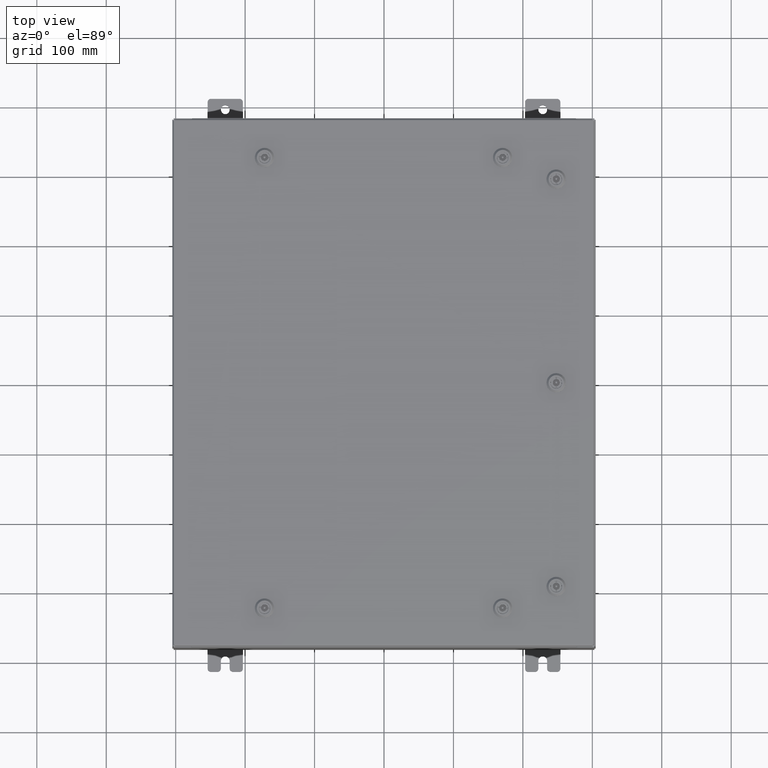
[diagram: clean part render]
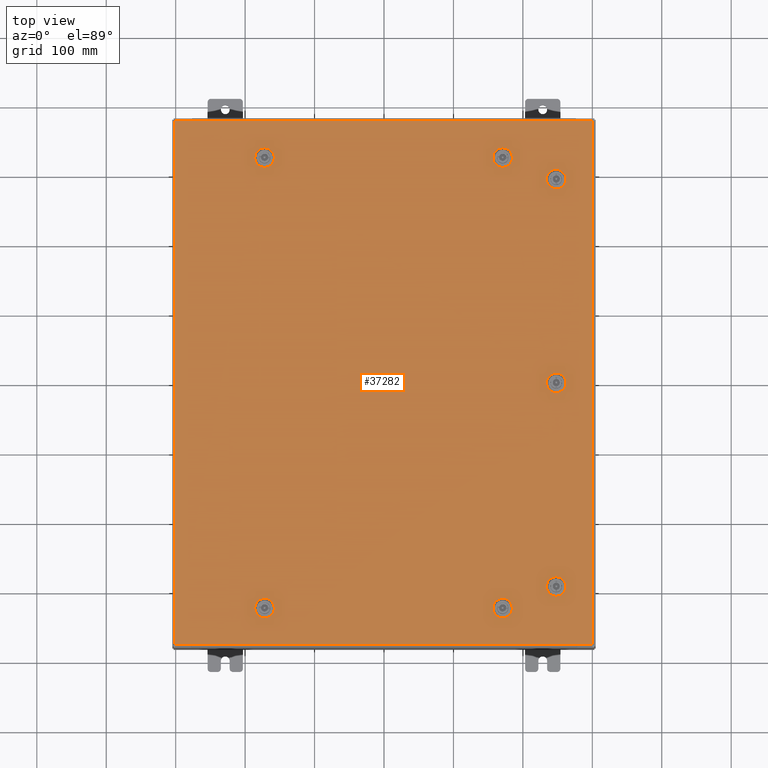
[diagram: same view with one face highlighted and labeled with its STEP entity id]
A machine part, top view. The second image highlights one B-rep face of the part: STEP entity #37282.
In plain terms, the highlighted planar face has unit normal (0, 0, -1).
Its self-contained STEP definition (entity closure, byte-faithful):
#252 = ORIENTED_EDGE ( 'NONE', *, *, #18553, .F. ) ;
#348 = ORIENTED_EDGE ( 'NONE', *, *, #28207, .F. ) ;
#359 = ORIENTED_EDGE ( 'NONE', *, *, #5296, .T. ) ;
#426 = CARTESIAN_POINT ( 'NONE',  ( -6.550547624732094400, -13.18279999999999100, -2.548900087721007400E-013 ) ) ;
#778 = CIRCLE ( 'NONE', #36356, 0.4424999999999972800 ) ;
#814 = VECTOR ( 'NONE', #38785, 39.37007874015748100 ) ;
#831 = CARTESIAN_POINT ( 'NONE',  ( 9.392800000000015400, 0.1994523752679053800, 0.0000000000000000000 ) ) ;
#899 = DIRECTION ( 'NONE',  ( 0.0000000000000000000, 0.0000000000000000000, -1.000000000000000000 ) ) ;
#926 = VERTEX_POINT ( 'NONE', #38141 ) ;
#1073 = LINE ( 'NONE', #54258, #39003 ) ;
#1379 = DIRECTION ( 'NONE',  ( -1.000000000000000000, 0.0000000000000000000, 6.982962677686269100E-015 ) ) ;
#1598 = VECTOR ( 'NONE', #44238, 39.37007874015748100 ) ;
#1765 = EDGE_CURVE ( 'NONE', #58840, #39503, #8020, .T. ) ;
#1957 = EDGE_LOOP ( 'NONE', ( #58998, #15841, #23440, #19887 ) ) ;
#2309 = ORIENTED_EDGE ( 'NONE', *, *, #36136, .F. ) ;
#2387 = LINE ( 'NONE', #19048, #40325 ) ;
#2685 = ORIENTED_EDGE ( 'NONE', *, *, #40140, .F. ) ;
#2746 = DIRECTION ( 'NONE',  ( -5.478697338139235000E-015, 1.000000000000000000, -0.0000000000000000000 ) ) ;
#2900 = ORIENTED_EDGE ( 'NONE', *, *, #24968, .F. ) ;
#2947 = EDGE_CURVE ( 'NONE', #17695, #28214, #36551, .T. ) ;
#3918 = LINE ( 'NONE', #54642, #814 ) ;
#4632 = CARTESIAN_POINT ( 'NONE',  ( -6.550547624732101500, -12.39280000000000300, -2.493734682567286900E-013 ) ) ;
#4679 = CARTESIAN_POINT ( 'NONE',  ( 6.550547624732101500, -12.39280000000000100, -2.036312386748179800E-013 ) ) ;
#4991 = LINE ( 'NONE', #426, #18151 ) ;
#5066 = ORIENTED_EDGE ( 'NONE', *, *, #19194, .F. ) ;
#5177 = EDGE_CURVE ( 'NONE', #31766, #16885, #7035, .T. ) ;
#5296 = EDGE_CURVE ( 'NONE', #8199, #39694, #3918, .T. ) ;
#5563 = ORIENTED_EDGE ( 'NONE', *, *, #1765, .F. ) ;
#6311 = CARTESIAN_POINT ( 'NONE',  ( 9.392800000000011800, 11.36304762473213300, 0.0000000000000000000 ) ) ;
#6536 = CIRCLE ( 'NONE', #19573, 0.4424999999999983400 ) ;
#6670 = EDGE_CURVE ( 'NONE', #63546, #14300, #30899, .T. ) ;
#7035 = CIRCLE ( 'NONE', #34880, 0.4424999999999961700 ) ;
#7065 = CIRCLE ( 'NONE', #62114, 0.4424999999999983400 ) ;
#7694 = CIRCLE ( 'NONE', #14695, 0.4424999999999972800 ) ;
#7762 = EDGE_CURVE ( 'NONE', #54696, #15092, #16130, .T. ) ;
#7969 = DIRECTION ( 'NONE',  ( -1.000000000000000000, -0.0000000000000000000, -0.0000000000000000000 ) ) ;
#8020 = LINE ( 'NONE', #39157, #59148 ) ;
#8199 = VERTEX_POINT ( 'NONE', #48003 ) ;
#8310 = FACE_BOUND ( 'NONE', #48933, .T. ) ;
#8378 = EDGE_CURVE ( 'NONE', #16885, #47711, #48663, .T. ) ;
#8392 = CARTESIAN_POINT ( 'NONE',  ( 7.192499999999983000, -12.78779999999999700, -2.019067794551563900E-013 ) ) ;
#8457 = CARTESIAN_POINT ( 'NONE',  ( 9.787800000000007800, 11.56250000000001600, 0.0000000000000000000 ) ) ;
#8799 = EDGE_CURVE ( 'NONE', #39694, #41234, #21454, .T. ) ;
#9279 = LINE ( 'NONE', #26017, #35558 ) ;
#9471 = CARTESIAN_POINT ( 'NONE',  ( 9.787800000000007800, 1.529834876451990400E-014, 0.0000000000000000000 ) ) ;
#9529 = CARTESIAN_POINT ( 'NONE',  ( -6.749999999999985800, -12.78779999999999900, -2.521317385144147400E-013 ) ) ;
#10091 = CARTESIAN_POINT ( 'NONE',  ( -11.84980000000000000, 14.84980000000000000, -2.048885995248197400E-016 ) ) ;
#10307 = VECTOR ( 'NONE', #47644, 39.37007874015748100 ) ;
#10346 = CARTESIAN_POINT ( 'NONE',  ( -6.550547624732093500, 13.18279999999998400, 0.0000000000000000000 ) ) ;
#10525 = CARTESIAN_POINT ( 'NONE',  ( -6.949452375267869200, -12.39280000000000100, -2.493734682567286900E-013 ) ) ;
#10837 = CARTESIAN_POINT ( 'NONE',  ( 10.18280000000000700, -0.1994523752678676000, 0.0000000000000000000 ) ) ;
#10938 = EDGE_CURVE ( 'NONE', #28214, #54696, #42384, .T. ) ;
#11080 = VERTEX_POINT ( 'NONE', #10525 ) ;
#11140 = CARTESIAN_POINT ( 'NONE',  ( 9.787800000000009600, -11.56250000000001600, -2.429631085186127900E-013 ) ) ;
#11193 = CARTESIAN_POINT ( 'NONE',  ( 6.749999999999985800, -12.78779999999999700, -2.049967404400325100E-013 ) ) ;
#11208 = CARTESIAN_POINT ( 'NONE',  ( 9.392800000000015400, 0.1994523752679053200, 0.0000000000000000000 ) ) ;
#11746 = DIRECTION ( 'NONE',  ( 0.0000000000000000000, 1.000000000000000000, 0.0000000000000000000 ) ) ;
#11848 = ORIENTED_EDGE ( 'NONE', *, *, #41886, .F. ) ;
#12094 = DIRECTION ( 'NONE',  ( 0.0000000000000000000, 0.0000000000000000000, 1.000000000000000000 ) ) ;
#12214 = AXIS2_PLACEMENT_3D ( 'NONE', #21392, #56084, #26359 ) ;
#12429 = VERTEX_POINT ( 'NONE', #10091 ) ;
#12780 = CARTESIAN_POINT ( 'NONE',  ( 6.749999999999985800, -12.78779999999999700, -2.049967404400325100E-013 ) ) ;
#12886 = DIRECTION ( 'NONE',  ( 0.0000000000000000000, 0.0000000000000000000, 1.000000000000000000 ) ) ;
#13354 = DIRECTION ( 'NONE',  ( -6.982962677686266700E-015, -6.982962677686266700E-015, 1.000000000000000000 ) ) ;
#13400 = DIRECTION ( 'NONE',  ( 1.000000000000000000, 0.0000000000000000000, 0.0000000000000000000 ) ) ;
#13777 = VECTOR ( 'NONE', #24097, 39.37007874015748100 ) ;
#14072 = EDGE_LOOP ( 'NONE', ( #252, #53021, #45860, #38408 ) ) ;
#14300 = VERTEX_POINT ( 'NONE', #36653 ) ;
#14438 = DIRECTION ( 'NONE',  ( 1.000000000000000000, 0.0000000000000000000, 0.0000000000000000000 ) ) ;
#14490 = CARTESIAN_POINT ( 'NONE',  ( 6.949452375267865600, 13.18279999999999300, 0.0000000000000000000 ) ) ;
#14497 = DIRECTION ( 'NONE',  ( 0.0000000000000000000, 1.000000000000000000, 6.982962677686270700E-015 ) ) ;
#14650 = ORIENTED_EDGE ( 'NONE', *, *, #8799, .T. ) ;
#14695 = AXIS2_PLACEMENT_3D ( 'NONE', #28534, #63190, #33472 ) ;
#14762 = EDGE_CURVE ( 'NONE', #33732, #63546, #4991, .T. ) ;
#14795 = ORIENTED_EDGE ( 'NONE', *, *, #36230, .F. ) ;
#14839 = EDGE_CURVE ( 'NONE', #46414, #926, #41372, .T. ) ;
#15060 = EDGE_LOOP ( 'NONE', ( #24286, #22470, #2685, #2309, #51134 ) ) ;
#15092 = VERTEX_POINT ( 'NONE', #40408 ) ;
#15517 = LINE ( 'NONE', #46801, #63559 ) ;
#15836 = AXIS2_PLACEMENT_3D ( 'NONE', #29404, #64081, #34354 ) ;
#15841 = ORIENTED_EDGE ( 'NONE', *, *, #26478, .F. ) ;
#16130 = LINE ( 'NONE', #831, #52592 ) ;
#16179 = DIRECTION ( 'NONE',  ( 1.000000000000000000, 0.0000000000000000000, 6.982962677686287200E-015 ) ) ;
#16490 = VECTOR ( 'NONE', #54271, 39.37007874015748100 ) ;
#16636 = VERTEX_POINT ( 'NONE', #41486 ) ;
#16711 = CIRCLE ( 'NONE', #55900, 0.4424999999999972800 ) ;
#16885 = VERTEX_POINT ( 'NONE', #28394 ) ;
#17137 = DIRECTION ( 'NONE',  ( 1.000000000000000000, 0.0000000000000000000, -6.982962677686248600E-015 ) ) ;
#17695 = VERTEX_POINT ( 'NONE', #10837 ) ;
#17707 = DIRECTION ( 'NONE',  ( -0.0000000000000000000, -6.982962677686266700E-015, 1.000000000000000000 ) ) ;
#17784 = ORIENTED_EDGE ( 'NONE', *, *, #31641, .F. ) ;
#17790 = DIRECTION ( 'NONE',  ( 1.000000000000000000, 0.0000000000000000000, 6.982962677686287200E-015 ) ) ;
#18151 = VECTOR ( 'NONE', #55200, 39.37007874015748100 ) ;
#18260 = DIRECTION ( 'NONE',  ( 0.0000000000000000000, 0.0000000000000000000, 1.000000000000000000 ) ) ;
#18400 = VERTEX_POINT ( 'NONE', #45772 ) ;
#18553 = EDGE_CURVE ( 'NONE', #57994, #31766, #57429, .T. ) ;
#18735 = AXIS2_PLACEMENT_3D ( 'NONE', #12780, #47445, #17790 ) ;
#19048 = CARTESIAN_POINT ( 'NONE',  ( 9.392800000000015400, 11.76195237526790500, 0.0000000000000000000 ) ) ;
#19156 = CARTESIAN_POINT ( 'NONE',  ( 10.18280000000000600, -11.76195237526789900, -2.443558770110843000E-013 ) ) ;
#19194 = EDGE_CURVE ( 'NONE', #16636, #22507, #2387, .T. ) ;
#19454 = VECTOR ( 'NONE', #52066, 39.37007874015748100 ) ;
#19573 = AXIS2_PLACEMENT_3D ( 'NONE', #55047, #25304, #59985 ) ;
#19630 = CARTESIAN_POINT ( 'NONE',  ( -6.550547624732094400, -13.18279999999999100, -2.548900087721007400E-013 ) ) ;
#19723 = ORIENTED_EDGE ( 'NONE', *, *, #49132, .F. ) ;
#19887 = ORIENTED_EDGE ( 'NONE', *, *, #10938, .F. ) ;
#20364 = EDGE_CURVE ( 'NONE', #24043, #60523, #9279, .T. ) ;
#21392 = CARTESIAN_POINT ( 'NONE',  ( -6.749999999999985800, -12.78779999999999900, -2.521317385144147400E-013 ) ) ;
#21415 = FACE_BOUND ( 'NONE', #1957, .T. ) ;
#21454 = LINE ( 'NONE', #41415, #47855 ) ;
#21803 = DIRECTION ( 'NONE',  ( 6.982962677686266700E-015, -0.0000000000000000000, 1.000000000000000000 ) ) ;
#21837 = ORIENTED_EDGE ( 'NONE', *, *, #62529, .F. ) ;
#22320 = CARTESIAN_POINT ( 'NONE',  ( 9.392800000000017100, -11.76195237526790500, -2.443558770110843500E-013 ) ) ;
#22461 = DIRECTION ( 'NONE',  ( -1.000000000000000000, 1.095739467627835000E-014, 0.0000000000000000000 ) ) ;
#22470 = ORIENTED_EDGE ( 'NONE', *, *, #39430, .F. ) ;
#22507 = VERTEX_POINT ( 'NONE', #6311 ) ;
#22652 = CARTESIAN_POINT ( 'NONE',  ( 6.949452375267869200, 12.39280000000000100, -4.852776656685374400E-014 ) ) ;
#22824 = EDGE_CURVE ( 'NONE', #52614, #18400, #7694, .T. ) ;
#23440 = ORIENTED_EDGE ( 'NONE', *, *, #7762, .F. ) ;
#24043 = VERTEX_POINT ( 'NONE', #26613 ) ;
#24048 = VERTEX_POINT ( 'NONE', #56334 ) ;
#24097 = DIRECTION ( 'NONE',  ( 5.478697338139220100E-015, 1.000000000000000000, 6.982962677686306200E-015 ) ) ;
#24286 = ORIENTED_EDGE ( 'NONE', *, *, #14762, .F. ) ;
#24341 = EDGE_CURVE ( 'NONE', #54077, #16636, #53305, .T. ) ;
#24574 = LINE ( 'NONE', #57154, #37750 ) ;
#24842 = CARTESIAN_POINT ( 'NONE',  ( 9.787800000000007800, 1.529834876451990400E-014, 0.0000000000000000000 ) ) ;
#24968 = EDGE_CURVE ( 'NONE', #41875, #25399, #16711, .T. ) ;
#25082 = ORIENTED_EDGE ( 'NONE', *, *, #37003, .F. ) ;
#25247 = CIRCLE ( 'NONE', #35422, 0.4424999999999972800 ) ;
#25304 = DIRECTION ( 'NONE',  ( -0.0000000000000000000, -6.982962677686266700E-015, 1.000000000000000000 ) ) ;
#25399 = VERTEX_POINT ( 'NONE', #53795 ) ;
#25520 = CARTESIAN_POINT ( 'NONE',  ( 0.0000000000000000000, 0.0000000000000000000, 0.0000000000000000000 ) ) ;
#26017 = CARTESIAN_POINT ( 'NONE',  ( -6.550547624732099700, 12.39279999999999800, 0.0000000000000000000 ) ) ;
#26325 = AXIS2_PLACEMENT_3D ( 'NONE', #9471, #44123, #14438 ) ;
#26359 = DIRECTION ( 'NONE',  ( 0.0000000000000000000, 1.000000000000000000, 6.982962677686304600E-015 ) ) ;
#26417 = CARTESIAN_POINT ( 'NONE',  ( -6.949452375267865600, 13.18279999999999000, 0.0000000000000000000 ) ) ;
#26478 = EDGE_CURVE ( 'NONE', #15092, #17695, #43741, .T. ) ;
#26613 = CARTESIAN_POINT ( 'NONE',  ( -6.949452375267869200, 12.39279999999999800, 0.0000000000000000000 ) ) ;
#26913 = EDGE_CURVE ( 'NONE', #41234, #12429, #42936, .T. ) ;
#27011 = ORIENTED_EDGE ( 'NONE', *, *, #32054, .F. ) ;
#27695 = CARTESIAN_POINT ( 'NONE',  ( 9.392800000000017100, -11.76195237526790500, -2.443558770110843000E-013 ) ) ;
#27890 = CARTESIAN_POINT ( 'NONE',  ( 10.18280000000000200, 0.1994523752679009100, 0.0000000000000000000 ) ) ;
#28207 = EDGE_CURVE ( 'NONE', #32039, #52614, #61453, .T. ) ;
#28214 = VERTEX_POINT ( 'NONE', #27890 ) ;
#28369 = CIRCLE ( 'NONE', #12214, 0.4424999999999961700 ) ;
#28394 = CARTESIAN_POINT ( 'NONE',  ( 10.18280000000000600, -11.76195237526789900, -2.443558770110843000E-013 ) ) ;
#28534 = CARTESIAN_POINT ( 'NONE',  ( 6.749999999999984900, 12.78779999999999700, -4.713499807438223100E-014 ) ) ;
#29404 = CARTESIAN_POINT ( 'NONE',  ( -6.749999999999984900, 12.78779999999999400, 0.0000000000000000000 ) ) ;
#29425 = CIRCLE ( 'NONE', #15836, 0.4424999999999972800 ) ;
#29426 = CARTESIAN_POINT ( 'NONE',  ( 11.84980000000000000, 14.84980000000000200, 8.878505979408856000E-016 ) ) ;
#29735 = VECTOR ( 'NONE', #7969, 39.37007874015748100 ) ;
#29832 = DIRECTION ( 'NONE',  ( 1.000000000000000000, 0.0000000000000000000, 0.0000000000000000000 ) ) ;
#30705 = VERTEX_POINT ( 'NONE', #50166 ) ;
#30899 = CIRCLE ( 'NONE', #53252, 0.4424999999999961700 ) ;
#31003 = DIRECTION ( 'NONE',  ( 6.982962677686266700E-015, -0.0000000000000000000, 1.000000000000000000 ) ) ;
#31641 = EDGE_CURVE ( 'NONE', #18400, #41875, #15517, .T. ) ;
#31766 = VERTEX_POINT ( 'NONE', #27695 ) ;
#32039 = VERTEX_POINT ( 'NONE', #14490 ) ;
#32054 = EDGE_CURVE ( 'NONE', #60523, #30705, #29425, .T. ) ;
#33010 = FACE_OUTER_BOUND ( 'NONE', #47163, .T. ) ;
#33472 = DIRECTION ( 'NONE',  ( -1.000000000000000000, 0.0000000000000000000, 6.982962677686269100E-015 ) ) ;
#33649 = ORIENTED_EDGE ( 'NONE', *, *, #34841, .F. ) ;
#33689 = VERTEX_POINT ( 'NONE', #10346 ) ;
#33732 = VERTEX_POINT ( 'NONE', #44789 ) ;
#33744 = CARTESIAN_POINT ( 'NONE',  ( 10.18280000000000700, -11.36304762473213100, -2.415703400261412700E-013 ) ) ;
#33862 = VECTOR ( 'NONE', #49279, 39.37007874015748100 ) ;
#33896 = AXIS2_PLACEMENT_3D ( 'NONE', #11193, #45848, #16179 ) ;
#34270 = LINE ( 'NONE', #34475, #16490 ) ;
#34286 = AXIS2_PLACEMENT_3D ( 'NONE', #24842, #59531, #29832 ) ;
#34354 = DIRECTION ( 'NONE',  ( 1.000000000000000000, 0.0000000000000000000, 0.0000000000000000000 ) ) ;
#34440 = EDGE_CURVE ( 'NONE', #926, #54300, #48677, .T. ) ;
#34461 = DIRECTION ( 'NONE',  ( 0.0000000000000000000, -1.000000000000000000, 0.0000000000000000000 ) ) ;
#34475 = CARTESIAN_POINT ( 'NONE',  ( 10.18280000000000200, 11.76195237526789900, 0.0000000000000000000 ) ) ;
#34580 = FACE_BOUND ( 'NONE', #59396, .T. ) ;
#34841 = EDGE_CURVE ( 'NONE', #33689, #38195, #24574, .T. ) ;
#34880 = AXIS2_PLACEMENT_3D ( 'NONE', #11140, #61159, #51230 ) ;
#35405 = DIRECTION ( 'NONE',  ( -8.218046007208770500E-015, -1.000000000000000000, 0.0000000000000000000 ) ) ;
#35422 = AXIS2_PLACEMENT_3D ( 'NONE', #41782, #12094, #46767 ) ;
#35475 = DIRECTION ( 'NONE',  ( -1.000000000000000000, 0.0000000000000000000, -0.0000000000000000000 ) ) ;
#35558 = VECTOR ( 'NONE', #55757, 39.37007874015748100 ) ;
#36136 = EDGE_CURVE ( 'NONE', #14300, #24048, #28369, .T. ) ;
#36230 = EDGE_CURVE ( 'NONE', #38195, #24043, #25247, .T. ) ;
#36296 = ORIENTED_EDGE ( 'NONE', *, *, #24341, .F. ) ;
#36356 = AXIS2_PLACEMENT_3D ( 'NONE', #60682, #31003, #1379 ) ;
#36551 = LINE ( 'NONE', #57103, #61378 ) ;
#36653 = CARTESIAN_POINT ( 'NONE',  ( -6.307499999999988600, -12.78779999999999900, -2.521317385144147400E-013 ) ) ;
#37003 = EDGE_CURVE ( 'NONE', #30705, #33689, #43065, .T. ) ;
#37282 = ADVANCED_FACE ( 'NONE', ( #60949, #63182, #21415, #8310, #59433, #34580, #46249, #33010 ), #45279, .F. ) ;
#37576 = CARTESIAN_POINT ( 'NONE',  ( 11.84980000000000000, 14.84980000000000200, 8.878505979408856000E-016 ) ) ;
#37640 = CARTESIAN_POINT ( 'NONE',  ( 6.550547624732093500, 13.18279999999999000, -4.574222958191066700E-014 ) ) ;
#37750 = VECTOR ( 'NONE', #22461, 39.37007874015748100 ) ;
#38141 = CARTESIAN_POINT ( 'NONE',  ( 6.949452375267869200, -12.39280000000000100, 0.0000000000000000000 ) ) ;
#38195 = VERTEX_POINT ( 'NONE', #26417 ) ;
#38408 = ORIENTED_EDGE ( 'NONE', *, *, #5177, .F. ) ;
#38785 = DIRECTION ( 'NONE',  ( 1.000000000000000000, -0.0000000000000000000, -0.0000000000000000000 ) ) ;
#39003 = VECTOR ( 'NONE', #34461, 39.37007874015748100 ) ;
#39157 = CARTESIAN_POINT ( 'NONE',  ( 6.550547624732094400, -13.18279999999999000, -2.091477791901900700E-013 ) ) ;
#39430 = EDGE_CURVE ( 'NONE', #11080, #33732, #7065, .T. ) ;
#39503 = VERTEX_POINT ( 'NONE', #44600 ) ;
#39516 = LINE ( 'NONE', #4632, #1598 ) ;
#39694 = VERTEX_POINT ( 'NONE', #55844 ) ;
#40140 = EDGE_CURVE ( 'NONE', #24048, #11080, #39516, .T. ) ;
#40325 = VECTOR ( 'NONE', #48728, 39.37007874015748100 ) ;
#40408 = CARTESIAN_POINT ( 'NONE',  ( 9.392800000000011800, -0.1994523752678671000, 0.0000000000000000000 ) ) ;
#40409 = CARTESIAN_POINT ( 'NONE',  ( 6.550547624732093500, 13.18279999999999000, -4.574222958191066700E-014 ) ) ;
#41174 = CARTESIAN_POINT ( 'NONE',  ( 10.18280000000000200, 11.76195237526789900, 0.0000000000000000000 ) ) ;
#41234 = VERTEX_POINT ( 'NONE', #29426 ) ;
#41372 = CIRCLE ( 'NONE', #33896, 0.4424999999999972800 ) ;
#41415 = CARTESIAN_POINT ( 'NONE',  ( 11.84980000000000000, -14.84979999999999300, -2.048885995248197400E-016 ) ) ;
#41486 = CARTESIAN_POINT ( 'NONE',  ( 9.392800000000015400, 11.76195237526790500, 0.0000000000000000000 ) ) ;
#41538 = VERTEX_POINT ( 'NONE', #46099 ) ;
#41752 = AXIS2_PLACEMENT_3D ( 'NONE', #8457, #43083, #13400 ) ;
#41782 = CARTESIAN_POINT ( 'NONE',  ( -6.749999999999984900, 12.78779999999999400, 0.0000000000000000000 ) ) ;
#41875 = VERTEX_POINT ( 'NONE', #22652 ) ;
#41886 = EDGE_CURVE ( 'NONE', #39503, #46414, #44088, .T. ) ;
#42367 = AXIS2_PLACEMENT_3D ( 'NONE', #43030, #13354, #48043 ) ;
#42384 = CIRCLE ( 'NONE', #26325, 0.4424999999999972800 ) ;
#42555 = CARTESIAN_POINT ( 'NONE',  ( 9.787800000000007800, 11.56250000000001600, 0.0000000000000000000 ) ) ;
#42681 = CARTESIAN_POINT ( 'NONE',  ( 6.550547624732101500, -12.39280000000000100, -2.036312386748179800E-013 ) ) ;
#42936 = LINE ( 'NONE', #37576, #29735 ) ;
#43030 = CARTESIAN_POINT ( 'NONE',  ( 6.749999999999985800, -12.78779999999999700, -2.049967404400325100E-013 ) ) ;
#43065 = CIRCLE ( 'NONE', #52963, 0.4424999999999972800 ) ;
#43083 = DIRECTION ( 'NONE',  ( 0.0000000000000000000, 0.0000000000000000000, 1.000000000000000000 ) ) ;
#43226 = ORIENTED_EDGE ( 'NONE', *, *, #26913, .T. ) ;
#43741 = CIRCLE ( 'NONE', #34286, 0.4424999999999972800 ) ;
#44088 = CIRCLE ( 'NONE', #42367, 0.4424999999999972800 ) ;
#44123 = DIRECTION ( 'NONE',  ( 0.0000000000000000000, 0.0000000000000000000, 1.000000000000000000 ) ) ;
#44176 = DIRECTION ( 'NONE',  ( -0.0000000000000000000, -6.982962677686266700E-015, 1.000000000000000000 ) ) ;
#44238 = DIRECTION ( 'NONE',  ( -1.000000000000000000, 5.478697338139250000E-015, 7.785697190086082800E-029 ) ) ;
#44600 = CARTESIAN_POINT ( 'NONE',  ( 6.949452375267867400, -13.18279999999999300, -2.063622422052470700E-013 ) ) ;
#44789 = CARTESIAN_POINT ( 'NONE',  ( -6.949452375267867400, -13.18279999999999500, 0.0000000000000000000 ) ) ;
#45279 = PLANE ( 'NONE',  #55048 ) ;
#45772 = CARTESIAN_POINT ( 'NONE',  ( 6.550547624732099700, 12.39280000000000100, -4.574222958191072400E-014 ) ) ;
#45848 = DIRECTION ( 'NONE',  ( -6.982962677686266700E-015, -6.982962677686266700E-015, 1.000000000000000000 ) ) ;
#45860 = ORIENTED_EDGE ( 'NONE', *, *, #8378, .F. ) ;
#46099 = CARTESIAN_POINT ( 'NONE',  ( 10.18280000000000600, 11.36304762473213100, 0.0000000000000000000 ) ) ;
#46249 = FACE_BOUND ( 'NONE', #63920, .T. ) ;
#46414 = VERTEX_POINT ( 'NONE', #8392 ) ;
#46767 = DIRECTION ( 'NONE',  ( 1.000000000000000000, 0.0000000000000000000, 0.0000000000000000000 ) ) ;
#46801 = CARTESIAN_POINT ( 'NONE',  ( 6.550547624732099700, 12.39280000000000100, -4.574222958191072400E-014 ) ) ;
#47163 = EDGE_LOOP ( 'NONE', ( #359, #14650, #43226, #63817 ) ) ;
#47371 = CARTESIAN_POINT ( 'NONE',  ( -6.749999999999985800, -12.78779999999999900, -2.521317385144147400E-013 ) ) ;
#47445 = DIRECTION ( 'NONE',  ( -6.982962677686266700E-015, -6.982962677686266700E-015, 1.000000000000000000 ) ) ;
#47548 = DIRECTION ( 'NONE',  ( 1.000000000000000000, 0.0000000000000000000, 0.0000000000000000000 ) ) ;
#47644 = DIRECTION ( 'NONE',  ( -1.000000000000000000, -1.095739467627835000E-014, 6.982962677686269100E-015 ) ) ;
#47645 = CARTESIAN_POINT ( 'NONE',  ( 6.550547624732094400, -13.18279999999999000, -2.091477791901901000E-013 ) ) ;
#47711 = VERTEX_POINT ( 'NONE', #33744 ) ;
#47855 = VECTOR ( 'NONE', #11746, 39.37007874015748100 ) ;
#47937 = CARTESIAN_POINT ( 'NONE',  ( -6.749999999999984900, 12.78779999999999400, 0.0000000000000000000 ) ) ;
#48003 = CARTESIAN_POINT ( 'NONE',  ( -11.84980000000000000, -14.84979999999999500, -2.048885995248197400E-016 ) ) ;
#48043 = DIRECTION ( 'NONE',  ( 1.000000000000000000, 0.0000000000000000000, 6.982962677686287200E-015 ) ) ;
#48663 = LINE ( 'NONE', #19156, #13777 ) ;
#48677 = LINE ( 'NONE', #4679, #33862 ) ;
#48728 = DIRECTION ( 'NONE',  ( -8.218046007208784700E-015, -1.000000000000000000, 0.0000000000000000000 ) ) ;
#48933 = EDGE_LOOP ( 'NONE', ( #58101, #55976, #11848, #5563, #49277 ) ) ;
#49132 = EDGE_CURVE ( 'NONE', #41538, #54077, #34270, .T. ) ;
#49277 = ORIENTED_EDGE ( 'NONE', *, *, #56345, .F. ) ;
#49279 = DIRECTION ( 'NONE',  ( -1.000000000000000000, -0.0000000000000000000, -6.982962677686265900E-015 ) ) ;
#50166 = CARTESIAN_POINT ( 'NONE',  ( -6.307499999999987700, 12.78779999999999400, 0.0000000000000000000 ) ) ;
#51134 = ORIENTED_EDGE ( 'NONE', *, *, #6670, .F. ) ;
#51185 = CARTESIAN_POINT ( 'NONE',  ( 9.392800000000013600, -11.36304762473213300, 0.0000000000000000000 ) ) ;
#51230 = DIRECTION ( 'NONE',  ( 0.0000000000000000000, 1.000000000000000000, 6.982962677686304600E-015 ) ) ;
#51523 = CARTESIAN_POINT ( 'NONE',  ( 6.749999999999984900, 12.78779999999999700, -4.713499807438223100E-014 ) ) ;
#51533 = CIRCLE ( 'NONE', #18735, 0.4424999999999972800 ) ;
#52066 = DIRECTION ( 'NONE',  ( 8.218046007208784700E-015, -1.000000000000000000, -6.982962677686345600E-015 ) ) ;
#52082 = ORIENTED_EDGE ( 'NONE', *, *, #22824, .F. ) ;
#52369 = DIRECTION ( 'NONE',  ( 0.0000000000000000000, 1.000000000000000000, 6.982962677686304600E-015 ) ) ;
#52592 = VECTOR ( 'NONE', #35405, 39.37007874015748100 ) ;
#52614 = VERTEX_POINT ( 'NONE', #40409 ) ;
#52934 = DIRECTION ( 'NONE',  ( 1.000000000000000000, 0.0000000000000000000, 0.0000000000000000000 ) ) ;
#52963 = AXIS2_PLACEMENT_3D ( 'NONE', #47937, #18260, #52934 ) ;
#53021 = ORIENTED_EDGE ( 'NONE', *, *, #57101, .F. ) ;
#53252 = AXIS2_PLACEMENT_3D ( 'NONE', #47371, #17707, #52369 ) ;
#53305 = CIRCLE ( 'NONE', #41752, 0.4424999999999972800 ) ;
#53795 = CARTESIAN_POINT ( 'NONE',  ( 7.192499999999982100, 12.78779999999999700, -5.022495905925838200E-014 ) ) ;
#54077 = VERTEX_POINT ( 'NONE', #41174 ) ;
#54258 = CARTESIAN_POINT ( 'NONE',  ( -11.84980000000000000, 14.84980000000000000, -2.048885995248197400E-016 ) ) ;
#54271 = DIRECTION ( 'NONE',  ( -5.478697338139220100E-015, 1.000000000000000000, -0.0000000000000000000 ) ) ;
#54300 = VERTEX_POINT ( 'NONE', #42681 ) ;
#54642 = CARTESIAN_POINT ( 'NONE',  ( -11.84980000000000000, -14.84979999999999500, -2.048885995248197400E-016 ) ) ;
#54696 = VERTEX_POINT ( 'NONE', #11208 ) ;
#55047 = CARTESIAN_POINT ( 'NONE',  ( 9.787800000000009600, -11.56250000000001600, -2.429631085186127900E-013 ) ) ;
#55048 = AXIS2_PLACEMENT_3D ( 'NONE', #25520, #899, #35475 ) ;
#55200 = DIRECTION ( 'NONE',  ( 1.000000000000000000, 1.095739467627835000E-014, 7.785697190085976300E-029 ) ) ;
#55757 = DIRECTION ( 'NONE',  ( 1.000000000000000000, -0.0000000000000000000, -0.0000000000000000000 ) ) ;
#55844 = CARTESIAN_POINT ( 'NONE',  ( 11.84980000000000000, -14.84979999999999300, -2.048885995248197400E-016 ) ) ;
#55866 = EDGE_LOOP ( 'NONE', ( #19723, #62641, #5066, #36296 ) ) ;
#55882 = CIRCLE ( 'NONE', #62466, 0.4424999999999972800 ) ;
#55900 = AXIS2_PLACEMENT_3D ( 'NONE', #51523, #21803, #56493 ) ;
#55976 = ORIENTED_EDGE ( 'NONE', *, *, #14839, .F. ) ;
#56084 = DIRECTION ( 'NONE',  ( -0.0000000000000000000, -6.982962677686266700E-015, 1.000000000000000000 ) ) ;
#56334 = CARTESIAN_POINT ( 'NONE',  ( -6.550547624732101500, -12.39280000000000300, -2.493734682567286900E-013 ) ) ;
#56345 = EDGE_CURVE ( 'NONE', #54300, #58840, #51533, .T. ) ;
#56493 = DIRECTION ( 'NONE',  ( -1.000000000000000000, 0.0000000000000000000, 6.982962677686269100E-015 ) ) ;
#57101 = EDGE_CURVE ( 'NONE', #47711, #57994, #6536, .T. ) ;
#57103 = CARTESIAN_POINT ( 'NONE',  ( 10.18280000000000200, 0.1994523752679009100, 0.0000000000000000000 ) ) ;
#57154 = CARTESIAN_POINT ( 'NONE',  ( -6.550547624732093500, 13.18279999999998400, 0.0000000000000000000 ) ) ;
#57429 = LINE ( 'NONE', #22320, #19454 ) ;
#57686 = EDGE_CURVE ( 'NONE', #12429, #8199, #1073, .T. ) ;
#57994 = VERTEX_POINT ( 'NONE', #51185 ) ;
#58101 = ORIENTED_EDGE ( 'NONE', *, *, #34440, .F. ) ;
#58840 = VERTEX_POINT ( 'NONE', #47645 ) ;
#58998 = ORIENTED_EDGE ( 'NONE', *, *, #2947, .F. ) ;
#59148 = VECTOR ( 'NONE', #63338, 39.37007874015748100 ) ;
#59396 = EDGE_LOOP ( 'NONE', ( #348, #21837, #2900, #17784, #52082 ) ) ;
#59433 = FACE_BOUND ( 'NONE', #15060, .T. ) ;
#59531 = DIRECTION ( 'NONE',  ( 0.0000000000000000000, 0.0000000000000000000, 1.000000000000000000 ) ) ;
#59985 = DIRECTION ( 'NONE',  ( 0.0000000000000000000, 1.000000000000000000, 6.982962677686270700E-015 ) ) ;
#60523 = VERTEX_POINT ( 'NONE', #61407 ) ;
#60682 = CARTESIAN_POINT ( 'NONE',  ( 6.749999999999984900, 12.78779999999999700, -4.713499807438223100E-014 ) ) ;
#60731 = EDGE_CURVE ( 'NONE', #22507, #41538, #55882, .T. ) ;
#60949 = FACE_BOUND ( 'NONE', #14072, .T. ) ;
#61159 = DIRECTION ( 'NONE',  ( -0.0000000000000000000, -6.982962677686266700E-015, 1.000000000000000000 ) ) ;
#61378 = VECTOR ( 'NONE', #2746, 39.37007874015748100 ) ;
#61407 = CARTESIAN_POINT ( 'NONE',  ( -6.550547624732099700, 12.39279999999999800, 0.0000000000000000000 ) ) ;
#61453 = LINE ( 'NONE', #37640, #10307 ) ;
#62114 = AXIS2_PLACEMENT_3D ( 'NONE', #9529, #44176, #14497 ) ;
#62233 = ORIENTED_EDGE ( 'NONE', *, *, #20364, .F. ) ;
#62466 = AXIS2_PLACEMENT_3D ( 'NONE', #42555, #12886, #47548 ) ;
#62529 = EDGE_CURVE ( 'NONE', #25399, #32039, #778, .T. ) ;
#62641 = ORIENTED_EDGE ( 'NONE', *, *, #60731, .F. ) ;
#63182 = FACE_BOUND ( 'NONE', #55866, .T. ) ;
#63190 = DIRECTION ( 'NONE',  ( 6.982962677686266700E-015, -0.0000000000000000000, 1.000000000000000000 ) ) ;
#63338 = DIRECTION ( 'NONE',  ( 1.000000000000000000, -1.095739467627835000E-014, 6.982962677686171300E-015 ) ) ;
#63546 = VERTEX_POINT ( 'NONE', #19630 ) ;
#63559 = VECTOR ( 'NONE', #17137, 39.37007874015748100 ) ;
#63817 = ORIENTED_EDGE ( 'NONE', *, *, #57686, .T. ) ;
#63920 = EDGE_LOOP ( 'NONE', ( #62233, #14795, #33649, #25082, #27011 ) ) ;
#64081 = DIRECTION ( 'NONE',  ( 0.0000000000000000000, 0.0000000000000000000, 1.000000000000000000 ) ) ;